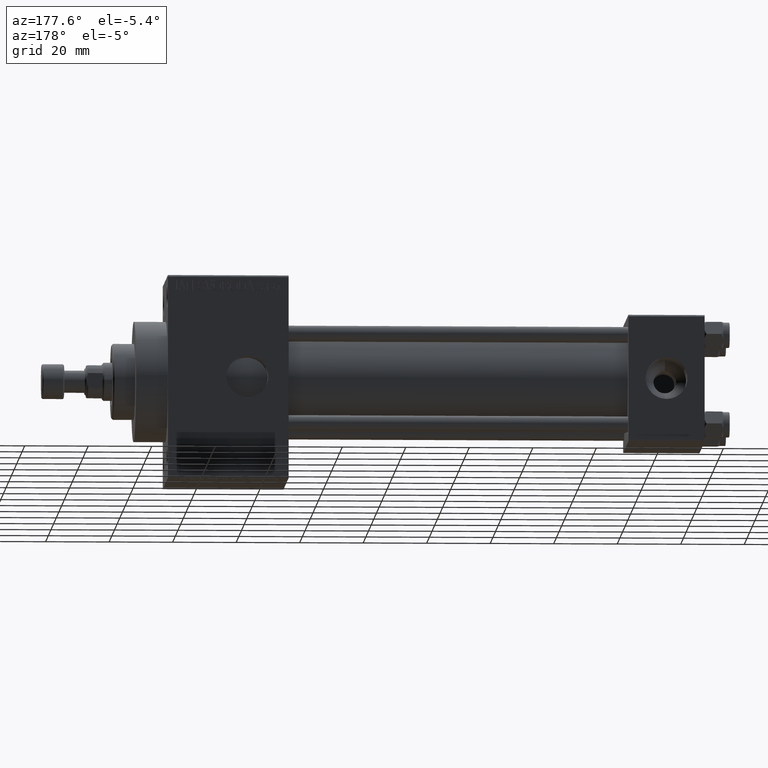
[diagram: clean part render]
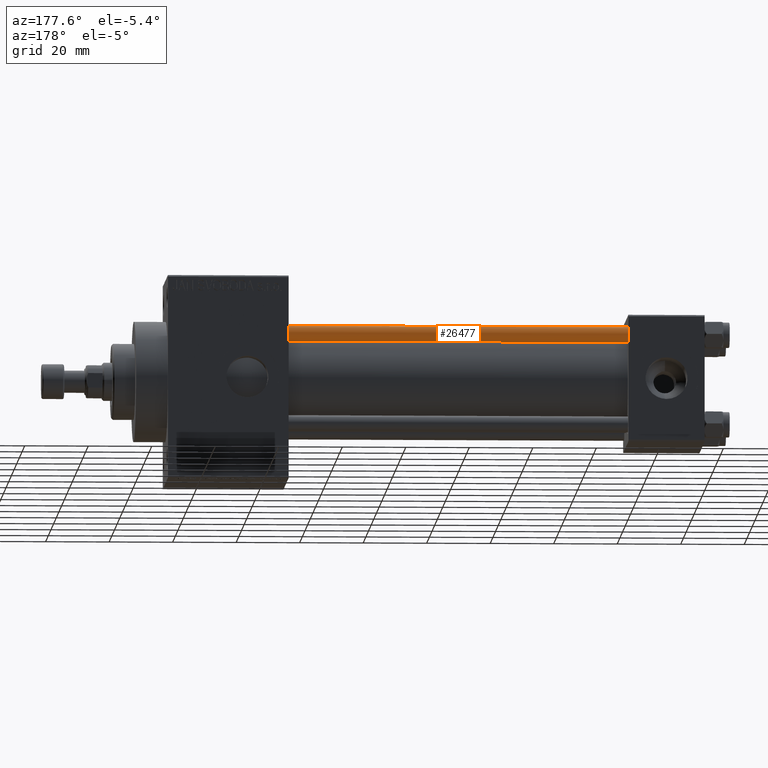
[diagram: same view with one face highlighted and labeled with its STEP entity id]
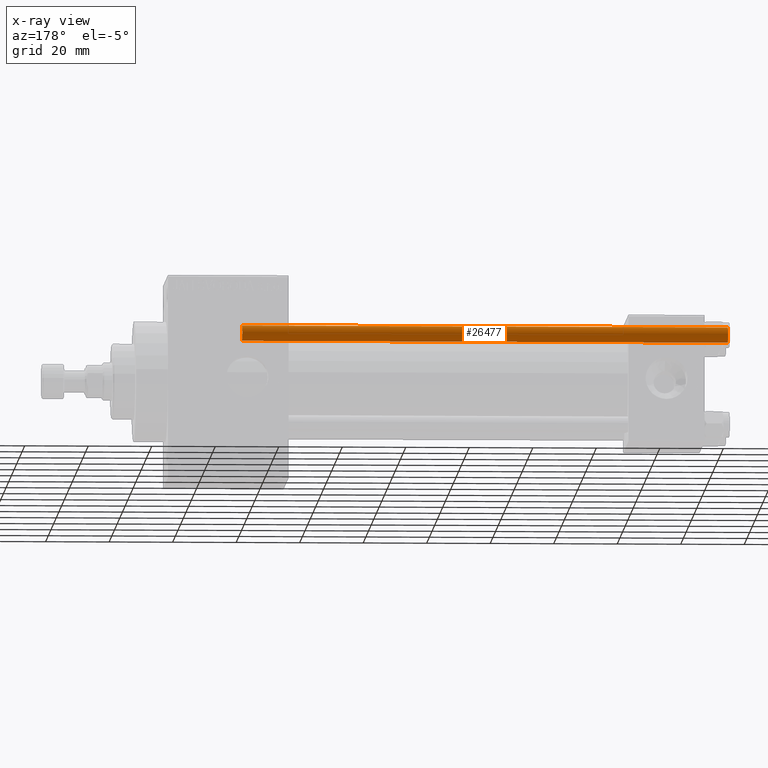
[diagram: x-ray of the same camera — body ghosted, the highlighted face saturated]
A machine part, auxiliary view. The second image highlights one B-rep face of the part: STEP entity #26477.
The next image is the same camera in x-ray: the body ghosted, the highlighted face saturated — about 0% of this face is hidden behind the body in this view.
In plain terms, the highlighted cylindrical surface (edge-blend (fillet) strip) has radius 2.5 mm, axis along (-1, -0, 0).
Its self-contained STEP definition (entity closure, byte-faithful):
#3889 = FACE_OUTER_BOUND ( 'NONE', #35420, .T. ) ;
#4012 = ORIENTED_EDGE ( 'NONE', *, *, #28981, .T. ) ;
#6514 = CARTESIAN_POINT ( 'NONE',  ( -2.500000000000000000, 0.000000000000000000, 153.5000000000000284 ) ) ;
#7231 = DIRECTION ( 'NONE',  ( 0.000000000000000000, 0.000000000000000000, -1.000000000000000000 ) ) ;
#7475 = DIRECTION ( 'NONE',  ( 1.000000000000000000, 0.000000000000000000, 0.000000000000000000 ) ) ;
#7953 = VERTEX_POINT ( 'NONE', #38100 ) ;
#10722 = DIRECTION ( 'NONE',  ( 1.000000000000000000, 0.000000000000000000, 0.000000000000000000 ) ) ;
#11915 = DIRECTION ( 'NONE',  ( -0.000000000000000000, -0.000000000000000000, -1.000000000000000000 ) ) ;
#11979 = CIRCLE ( 'NONE', #35044, 2.500000000000000000 ) ;
#13034 = EDGE_CURVE ( 'NONE', #31930, #32311, #47992, .T. ) ;
#18855 = CYLINDRICAL_SURFACE ( 'NONE', #34177, 2.500000000000000000 ) ;
#19097 = DIRECTION ( 'NONE',  ( -0.000000000000000000, -0.000000000000000000, -1.000000000000000000 ) ) ;
#19659 = CARTESIAN_POINT ( 'NONE',  ( 2.500000000000000000, 3.061616997868383141E-16, 0.5000000000000281997 ) ) ;
#21480 = LINE ( 'NONE', #36646, #23761 ) ;
#22896 = CARTESIAN_POINT ( 'NONE',  ( -2.500000000000000000, 0.000000000000000000, 154.0000000000000000 ) ) ;
#23372 = EDGE_CURVE ( 'NONE', #32311, #42939, #21480, .T. ) ;
#23761 = VECTOR ( 'NONE', #29194, 1000.000000000000000 ) ;
#26335 = EDGE_CURVE ( 'NONE', #31930, #7953, #38562, .T. ) ;
#26477 = ADVANCED_FACE ( 'NONE', ( #3889 ), #18855, .T. ) ;
#26542 = AXIS2_PLACEMENT_3D ( 'NONE', #29175, #7231, #7475 ) ;
#28981 = EDGE_CURVE ( 'NONE', #42939, #7953, #11979, .T. ) ;
#29175 = CARTESIAN_POINT ( 'NONE',  ( 0.000000000000000000, 0.000000000000000000, 153.5000000000000284 ) ) ;
#29194 = DIRECTION ( 'NONE',  ( -0.000000000000000000, -0.000000000000000000, -1.000000000000000000 ) ) ;
#30794 = CARTESIAN_POINT ( 'NONE',  ( 0.000000000000000000, 0.000000000000000000, 154.0000000000000000 ) ) ;
#31930 = VERTEX_POINT ( 'NONE', #6514 ) ;
#32311 = VERTEX_POINT ( 'NONE', #41981 ) ;
#33145 = DIRECTION ( 'NONE',  ( -0.000000000000000000, -0.000000000000000000, 1.000000000000000000 ) ) ;
#33903 = ORIENTED_EDGE ( 'NONE', *, *, #26335, .F. ) ;
#34022 = DIRECTION ( 'NONE',  ( -1.000000000000000000, 0.000000000000000000, 0.000000000000000000 ) ) ;
#34177 = AXIS2_PLACEMENT_3D ( 'NONE', #30794, #19097, #34022 ) ;
#35044 = AXIS2_PLACEMENT_3D ( 'NONE', #37358, #33145, #10722 ) ;
#35420 = EDGE_LOOP ( 'NONE', ( #45129, #43195, #4012, #33903 ) ) ;
#36560 = VECTOR ( 'NONE', #11915, 1000.000000000000000 ) ;
#36646 = CARTESIAN_POINT ( 'NONE',  ( 2.500000000000000000, 3.061616997868383141E-16, 154.0000000000000000 ) ) ;
#37358 = CARTESIAN_POINT ( 'NONE',  ( 0.000000000000000000, 0.000000000000000000, 0.5000000000000281997 ) ) ;
#38100 = CARTESIAN_POINT ( 'NONE',  ( -2.500000000000000000, 0.000000000000000000, 0.5000000000000281997 ) ) ;
#38562 = LINE ( 'NONE', #22896, #36560 ) ;
#41981 = CARTESIAN_POINT ( 'NONE',  ( 2.500000000000000000, 3.061616997868383141E-16, 153.5000000000000284 ) ) ;
#42939 = VERTEX_POINT ( 'NONE', #19659 ) ;
#43195 = ORIENTED_EDGE ( 'NONE', *, *, #23372, .T. ) ;
#45129 = ORIENTED_EDGE ( 'NONE', *, *, #13034, .T. ) ;
#47992 = CIRCLE ( 'NONE', #26542, 2.500000000000000000 ) ;